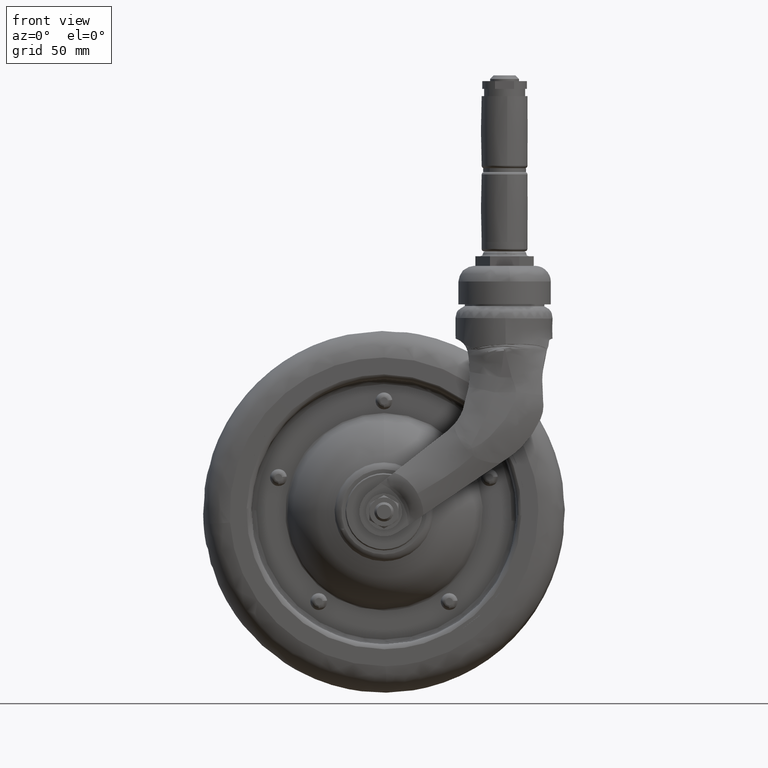
[diagram: clean part render]
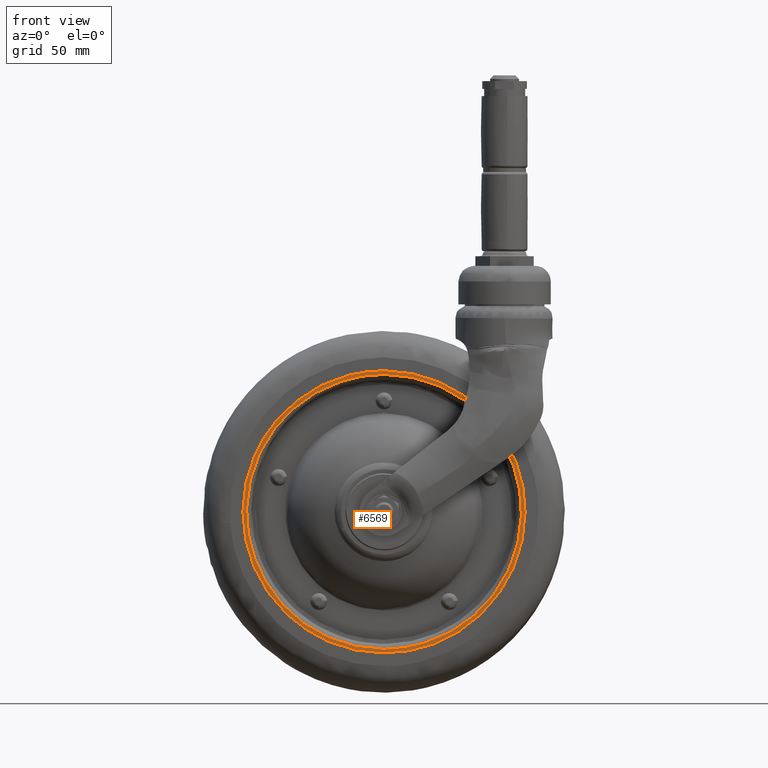
[diagram: same view with one face highlighted and labeled with its STEP entity id]
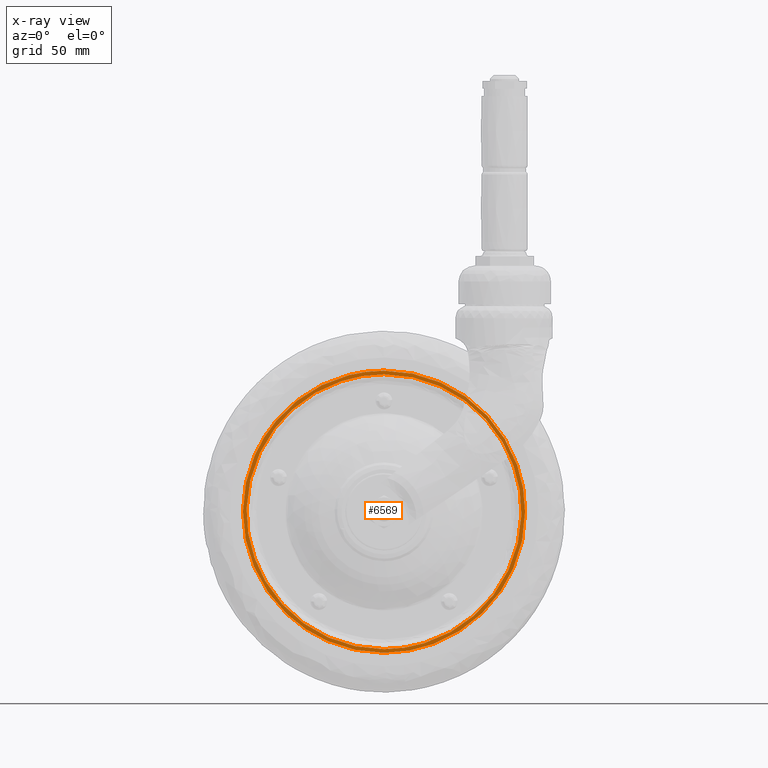
[diagram: x-ray of the same camera — body ghosted, the highlighted face saturated]
A machine part, front view. The second image highlights one B-rep face of the part: STEP entity #6569.
The next image is the same camera in x-ray: the body ghosted, the highlighted face saturated — about 0% of this face is hidden behind the body in this view.
In plain terms, the highlighted face is a freeform B-spline surface patch.
Its self-contained STEP definition (entity closure, byte-faithful):
#499=CARTESIAN_POINT('',(-44.668006276970871,-10.499999999524420,37.775910120290220));
#500=VERTEX_POINT('',#499);
#501=CARTESIAN_POINT('',(0.0,-10.500000000000000,58.500000000000000));
#502=VERTEX_POINT('',#501);
#503=CARTESIAN_POINT('',(-44.668006276970871,-10.499999999524420,37.775910120290220));
#504=CARTESIAN_POINT('',(-42.531499850204618,-10.499999999547160,40.302644938527017));
#505=CARTESIAN_POINT('',(-39.050892095798780,-10.499999999584221,43.772612621759201));
#506=CARTESIAN_POINT('',(-33.392825211512488,-10.499999999644480,48.149196610798818));
#507=CARTESIAN_POINT('',(-28.225740827464449,-10.499999999699471,51.388512244400417));
#508=CARTESIAN_POINT('',(-21.283815222057068,-10.499999999773371,54.695726441397802));
#509=CARTESIAN_POINT('',(-11.911811721550199,-10.499999999873360,57.651046919352332));
#510=CARTESIAN_POINT('',(-4.367826162574299,-10.499999999953291,58.500807994448962));
#511=CARTESIAN_POINT('',(0.0,-10.500000000000000,58.500000000000000));
#512=B_SPLINE_CURVE_WITH_KNOTS('',3,(#503,#504,#505,#506,#507,#508,#509,#510,#511),.UNSPECIFIED.,.F.,.U.,(4,1,1,1,1,1,4),(0.000000036848554,9.926753569037629,14.691608753712970,21.441794945354609,28.191945486303041,37.721672881896062,50.824993210712186),.UNSPECIFIED.);
#513=EDGE_CURVE('',#500,#502,#512,.T.);
#515=CARTESIAN_POINT('',(58.499999999999702,-10.500000000000000,-0.000005899866577));
#516=VERTEX_POINT('',#515);
#517=CARTESIAN_POINT('',(0.0,-10.500000000000000,58.500000000000000));
#518=CARTESIAN_POINT('',(3.709189951936700,-10.500000000000000,58.500440409058747));
#519=CARTESIAN_POINT('',(9.093271492762295,-10.500000000000011,57.986154498199632));
#520=CARTESIAN_POINT('',(16.434033792165970,-10.500000000000041,56.242679519439001));
#521=CARTESIAN_POINT('',(22.326449612643440,-10.499999999999799,54.215634285552433));
#522=CARTESIAN_POINT('',(29.025622529548439,-10.500000000000350,50.996795870498907));
#523=CARTESIAN_POINT('',(36.137253625028571,-10.499999999999700,46.307994913498533));
#524=CARTESIAN_POINT('',(42.347021859649722,-10.500000000000121,40.644903244538263));
#525=CARTESIAN_POINT('',(47.612904194284809,-10.500000000000050,34.268215987993692));
#526=CARTESIAN_POINT('',(51.508498116427667,-10.499999999999909,28.074562725900702));
#527=CARTESIAN_POINT('',(54.271843955250638,-10.500000000000011,22.089728067598600));
#528=CARTESIAN_POINT('',(56.236940817048691,-10.499999999999940,16.434107950125139));
#529=CARTESIAN_POINT('',(57.969619374904312,-10.499999999999989,9.332604232190024));
#530=CARTESIAN_POINT('',(58.500437776832811,-10.500000000000099,3.589543796453444));
#531=CARTESIAN_POINT('',(58.499999999999702,-10.500000000000000,-0.000005899866577));
#532=B_SPLINE_CURVE_WITH_KNOTS('',3,(#517,#518,#519,#520,#521,#522,#523,#524,#525,#526,#527,#528,#529,#530,#531),.UNSPECIFIED.,.F.,.U.,(4,1,1,1,1,1,1,1,1,1,1,1,4),(0.000000121534470,11.127462391086780,16.152813587663530,22.613980197012541,29.793027654757640,38.407940409186260,48.099488936223459,54.919608063207299,63.175564221991380,69.995660057768404,74.662034724667421,81.123176413496310,91.891732593995016),.UNSPECIFIED.);
#533=EDGE_CURVE('',#502,#516,#532,.T.);
#535=CARTESIAN_POINT('',(0.0,-10.500000000000000,-58.500000000000000));
#536=VERTEX_POINT('',#535);
#537=CARTESIAN_POINT('',(58.499999999999702,-10.500000000000000,-0.000005899866577));
#538=CARTESIAN_POINT('',(58.500084764206711,-10.500000000000000,-2.632311822587533));
#539=CARTESIAN_POINT('',(58.119847764633747,-10.500000000000011,-8.255868644845169));
#540=CARTESIAN_POINT('',(56.178712604524883,-10.499999999999989,-17.289917923353489));
#541=CARTESIAN_POINT('',(52.653968142237652,-10.500000000000020,-26.103773671653428));
#542=CARTESIAN_POINT('',(48.354262361085382,-10.499999999999989,-33.177876803106059));
#543=CARTESIAN_POINT('',(43.989423408977267,-10.500000000000020,-38.735627048655303));
#544=CARTESIAN_POINT('',(39.636095576484827,-10.499999999999970,-43.197155663986422));
#545=CARTESIAN_POINT('',(34.065124359058480,-10.500000000000030,-47.740629133652348));
#546=CARTESIAN_POINT('',(27.160824083776710,-10.499999999999989,-52.083415016749981));
#547=CARTESIAN_POINT('',(19.765413686844781,-10.500000000000020,-55.253484263874427));
#548=CARTESIAN_POINT('',(10.528894042536081,-10.499999999999851,-57.809488892077830));
#549=CARTESIAN_POINT('',(4.307507817982099,-10.500000000000160,-58.500879205823757));
#550=CARTESIAN_POINT('',(0.0,-10.500000000000000,-58.500000000000000));
#551=B_SPLINE_CURVE_WITH_KNOTS('',3,(#537,#538,#539,#540,#541,#542,#543,#544,#545,#546,#547,#548,#549,#550),.UNSPECIFIED.,.F.,.U.,(4,1,1,1,1,1,1,1,1,1,1,4),(0.000000122000088,7.896928312509402,16.870745130952930,27.639328662955808,36.254168690902340,41.638459242990287,48.817458242378613,54.919604087452782,63.175559648489383,73.226227403337987,78.969494726855075,91.891725943459846),.UNSPECIFIED.);
#552=EDGE_CURVE('',#516,#536,#551,.T.);
#554=CARTESIAN_POINT('',(-40.268741679730539,-10.500000000042361,-42.434399621021839));
#555=VERTEX_POINT('',#554);
#556=CARTESIAN_POINT('',(0.0,-10.500000000000000,-58.500000000000000));
#557=CARTESIAN_POINT('',(-3.701219272185127,-10.500000000003901,-58.500384897467157));
#558=CARTESIAN_POINT('',(-9.599821256720215,-10.500000000010109,-57.938274008060951));
#559=CARTESIAN_POINT('',(-18.475823785691510,-10.500000000019460,-55.708156692914343));
#560=CARTESIAN_POINT('',(-25.896210908357691,-10.500000000027200,-52.696680795736746));
#561=CARTESIAN_POINT('',(-33.579347346632908,-10.500000000035440,-48.155227541747159));
#562=CARTESIAN_POINT('',(-38.003627847132769,-10.500000000039901,-44.584209507551819));
#563=CARTESIAN_POINT('',(-40.268741679730539,-10.500000000042361,-42.434399621021839));
#564=B_SPLINE_CURVE_WITH_KNOTS('',3,(#556,#557,#558,#559,#560,#561,#562,#563),.UNSPECIFIED.,.F.,.U.,(4,1,1,1,1,4),(0.000000030826961,11.103582700159681,17.696351014858660,27.411943839360180,35.045683040785661,44.414330708108352),.UNSPECIFIED.);
#565=EDGE_CURVE('',#536,#555,#564,.T.);
#663=CARTESIAN_POINT('',(-58.499999999999709,-10.500000000000000,0.000005899865128));
#664=VERTEX_POINT('',#663);
#665=CARTESIAN_POINT('',(-58.499999999999709,-10.500000000000000,0.000005899865128));
#666=CARTESIAN_POINT('',(-58.500798190189833,-10.499999999947580,4.170923135576746));
#667=CARTESIAN_POINT('',(-57.822124423279391,-10.499999999867960,10.480299310871111));
#668=CARTESIAN_POINT('',(-55.404882996010599,-10.499999999757650,19.257528989556299));
#669=CARTESIAN_POINT('',(-52.765201421557499,-10.499999999677801,25.591318324447140));
#670=CARTESIAN_POINT('',(-49.122819839586782,-10.499999999596859,32.019236260279577));
#671=CARTESIAN_POINT('',(-46.394554840501527,-10.499999999550161,35.734523837260099));
#672=CARTESIAN_POINT('',(-44.668006276970871,-10.499999999524420,37.775910120290220));
#673=B_SPLINE_CURVE_WITH_KNOTS('',3,(#665,#666,#667,#668,#669,#670,#671,#672),.UNSPECIFIED.,.F.,.U.,(4,1,1,1,1,4),(0.000000027526852,12.512522226094640,18.929225234396750,27.270863338136639,33.045890300845102,41.066736177024673),.UNSPECIFIED.);
#674=EDGE_CURVE('',#664,#500,#673,.T.);
#703=CARTESIAN_POINT('',(-40.268741679730539,-10.500000000042361,-42.434399621021839));
#704=CARTESIAN_POINT('',(-43.318588886894467,-10.500000000039460,-39.541265145684527));
#705=CARTESIAN_POINT('',(-47.985064023378982,-10.500000000033991,-34.041459911948927));
#706=CARTESIAN_POINT('',(-52.543504170936252,-10.500000000026050,-26.078090872398789));
#707=CARTESIAN_POINT('',(-55.578537517291537,-10.500000000018719,-18.759339452783159));
#708=CARTESIAN_POINT('',(-57.862894460396809,-10.500000000010390,-10.385566446363301));
#709=CARTESIAN_POINT('',(-58.500398931749629,-10.500000000003700,-3.709174962130515));
#710=CARTESIAN_POINT('',(-58.499999999999709,-10.500000000000000,0.000005899865128));
#711=B_SPLINE_CURVE_WITH_KNOTS('',3,(#703,#704,#705,#706,#707,#708,#709,#710),.UNSPECIFIED.,.F.,.U.,(4,1,1,1,1,4),(0.000000034122522,12.611188763852820,21.513241504306141,27.447837671352030,36.349890638856358,47.477403784129478),.UNSPECIFIED.);
#712=EDGE_CURVE('',#555,#664,#711,.T.);
#1659=CARTESIAN_POINT('',(56.981998774835702,-10.500000000000000,-1.432415440422207));
#1660=VERTEX_POINT('',#1659);
#1671=CARTESIAN_POINT('',(0.0,-10.500000000000000,57.0));
#1672=VERTEX_POINT('',#1671);
#1673=CARTESIAN_POINT('',(0.0,-10.500000000000000,57.0));
#1674=CARTESIAN_POINT('',(2.961196077835982,-10.500000000000020,57.000191291936353));
#1675=CARTESIAN_POINT('',(8.765086376460232,-10.500000000000020,56.546720552069267));
#1676=CARTESIAN_POINT('',(16.050011726280310,-10.499999999999909,54.835963994793403));
#1677=CARTESIAN_POINT('',(22.288893217261311,-10.500000000000201,52.564739257170160));
#1678=CARTESIAN_POINT('',(27.846852624254620,-10.499999999999909,49.887867565060752));
#1679=CARTESIAN_POINT('',(34.052352555667760,-10.499999999999950,45.933987124694717));
#1680=CARTESIAN_POINT('',(40.025752314320492,-10.499999999999931,40.857051399161328));
#1681=CARTESIAN_POINT('',(45.917147402604940,-10.500000000000080,34.180045841929697));
#1682=CARTESIAN_POINT('',(50.367519559621122,-10.499999999999860,27.144207221902850));
#1683=CARTESIAN_POINT('',(53.806929291287467,-10.500000000000220,19.323846695663899));
#1684=CARTESIAN_POINT('',(56.436337564240077,-10.499999999999350,10.192493193561070));
#1685=CARTESIAN_POINT('',(57.093107617282513,-10.500000000000870,2.948832266493084));
#1686=CARTESIAN_POINT('',(56.981998774835702,-10.500000000000000,-1.432415440422207));
#1687=B_SPLINE_CURVE_WITH_KNOTS('',3,(#1673,#1674,#1675,#1676,#1677,#1678,#1679,#1680,#1681,#1682,#1683,#1684,#1685,#1686),.UNSPECIFIED.,.F.,.U.,(4,1,1,1,1,1,1,1,1,1,1,4),(0.000000128207617,8.883573419948831,17.411839131758711,22.386680741942470,28.782905260869651,35.889775909165593,44.418090023901136,52.235583039453203,62.540569171072264,69.292115083889428,77.820386645895852,90.968104179318132),.UNSPECIFIED.);
#1688=EDGE_CURVE('',#1672,#1660,#1687,.T.);
#1690=CARTESIAN_POINT('',(-56.981998774835702,-10.500000000000000,1.432415440422193));
#1691=VERTEX_POINT('',#1690);
#1692=CARTESIAN_POINT('',(-56.981998774835702,-10.500000000000000,1.432415440422193));
#1693=CARTESIAN_POINT('',(-56.932997222887167,-10.500000000000011,3.381985234505835));
#1694=CARTESIAN_POINT('',(-56.564618377606742,-10.500000000000000,8.192376583077458));
#1695=CARTESIAN_POINT('',(-55.124868578109542,-10.499999999999980,15.178277708393370));
#1696=CARTESIAN_POINT('',(-52.219678876491479,-10.500000000000000,23.415443941231739));
#1697=CARTESIAN_POINT('',(-47.856879120566127,-10.500000000000030,31.535255664949162));
#1698=CARTESIAN_POINT('',(-42.465076031401779,-10.499999999999970,38.282293960026053));
#1699=CARTESIAN_POINT('',(-37.405700035097759,-10.500000000000030,43.127063913159610));
#1700=CARTESIAN_POINT('',(-32.713426598298568,-10.499999999999920,46.823089300620460));
#1701=CARTESIAN_POINT('',(-26.659323336615788,-10.500000000000281,50.580786081104023));
#1702=CARTESIAN_POINT('',(-19.514995532888339,-10.499999999999851,53.768023623692322));
#1703=CARTESIAN_POINT('',(-10.439051583627830,-10.500000000000290,56.326115428321437));
#1704=CARTESIAN_POINT('',(-3.900424127531544,-10.499999999999609,57.000532291896093));
#1705=CARTESIAN_POINT('',(0.0,-10.500000000000000,57.0));
#1706=B_SPLINE_CURVE_WITH_KNOTS('',3,(#1692,#1693,#1694,#1695,#1696,#1697,#1698,#1699,#1700,#1701,#1702,#1703,#1704,#1705),.UNSPECIFIED.,.F.,.U.,(4,1,1,1,1,1,1,1,1,1,1,4),(0.000000123593523,5.850574773598979,14.454356545979410,21.337432582005349,32.006170743295542,41.986644356223280,47.148763712387783,52.999374727381159,59.882449890252673,68.486289282601319,76.401803633218265,88.102958190404479),.UNSPECIFIED.);
#1707=EDGE_CURVE('',#1691,#1672,#1706,.T.);
#1751=CARTESIAN_POINT('',(0.0,-10.500000000000000,-57.0));
#1752=VERTEX_POINT('',#1751);
#1753=CARTESIAN_POINT('',(0.0,-10.500000000000000,-57.0));
#1754=CARTESIAN_POINT('',(-2.013584232060014,-10.499999999999989,-56.999995444468460));
#1755=CARTESIAN_POINT('',(-7.225325979890914,-10.500000000000030,-56.723767567041577));
#1756=CARTESIAN_POINT('',(-14.228827168406250,-10.499999999999950,-55.375887607630837));
#1757=CARTESIAN_POINT('',(-21.311154723041280,-10.500000000000121,-52.995766475756767));
#1758=CARTESIAN_POINT('',(-27.872135840373300,-10.499999999999851,-49.936045169926430));
#1759=CARTESIAN_POINT('',(-35.441676606384704,-10.500000000000160,-45.013324701023564));
#1760=CARTESIAN_POINT('',(-42.225522652208276,-10.499999999999909,-38.677984280617601));
#1761=CARTESIAN_POINT('',(-47.789834420803182,-10.500000000000130,-31.424382079128499));
#1762=CARTESIAN_POINT('',(-51.217026737165178,-10.499999999999821,-25.311586783705710));
#1763=CARTESIAN_POINT('',(-53.912760517930991,-10.500000000000220,-18.857762438767299));
#1764=CARTESIAN_POINT('',(-55.557191585329591,-10.499999999999901,-13.277403930288539));
#1765=CARTESIAN_POINT('',(-56.811784871807632,-10.500000000000011,-6.154831849778439));
#1766=CARTESIAN_POINT('',(-57.056603155669762,-10.500000000000011,-1.527833190888095));
#1767=CARTESIAN_POINT('',(-56.981998774835702,-10.500000000000000,1.432415440422193));
#1768=B_SPLINE_CURVE_WITH_KNOTS('',3,(#1753,#1754,#1755,#1756,#1757,#1758,#1759,#1760,#1761,#1762,#1763,#1764,#1765,#1766,#1767),.UNSPECIFIED.,.F.,.U.,(4,1,1,1,1,1,1,1,1,1,1,1,4),(0.000000128187153,6.040779787161213,15.635131733777300,21.320643482884961,28.427547212602502,37.311140574235139,48.326785003087970,56.144368908800388,64.672621749170034,69.292115083889428,77.109724032749028,82.084562300048844,90.968104179318061),.UNSPECIFIED.);
#1769=EDGE_CURVE('',#1752,#1691,#1768,.T.);
#1771=CARTESIAN_POINT('',(56.981998774835702,-10.500000000000000,-1.432415440422207));
#1772=CARTESIAN_POINT('',(56.870532064279402,-10.500000000000030,-5.905059158104428));
#1773=CARTESIAN_POINT('',(55.767026280525350,-10.499999999999980,-13.565380051252941));
#1774=CARTESIAN_POINT('',(52.455894529467741,-10.500000000000011,-22.774035691486219));
#1775=CARTESIAN_POINT('',(48.660199678041472,-10.500000000000000,-29.994108552203400));
#1776=CARTESIAN_POINT('',(44.021867873282879,-10.499999999999989,-36.577256805396750));
#1777=CARTESIAN_POINT('',(38.649090080367969,-10.499999999999980,-42.109158746503702));
#1778=CARTESIAN_POINT('',(32.903045838302958,-10.499999999999959,-46.691425619437432));
#1779=CARTESIAN_POINT('',(26.869452357675591,-10.500000000000041,-50.487074564440533));
#1780=CARTESIAN_POINT('',(19.725102246334469,-10.499999999999970,-53.674233960180430));
#1781=CARTESIAN_POINT('',(10.668404672431860,-10.500000000000179,-56.286125356159381));
#1782=CARTESIAN_POINT('',(4.129872937227716,-10.499999999999741,-57.000681538679892));
#1783=CARTESIAN_POINT('',(0.0,-10.500000000000000,-57.0));
#1784=B_SPLINE_CURVE_WITH_KNOTS('',3,(#1771,#1772,#1773,#1774,#1775,#1776,#1777,#1778,#1779,#1780,#1781,#1782,#1783),.UNSPECIFIED.,.F.,.U.,(4,1,1,1,1,1,1,1,1,1,4),(0.000000123588762,13.421897326635030,23.058197737807902,29.252969909653320,37.856767251188863,47.148763712385453,52.311110220876039,59.882449890250797,68.486289282601007,75.713525298819050,88.102958190404493),.UNSPECIFIED.);
#1785=EDGE_CURVE('',#1660,#1752,#1784,.T.);
#6550=CARTESIAN_POINT('',(-64.344149773230981,-10.500000000000000,64.344149773231308));
#6551=CARTESIAN_POINT('',(-64.344149773230981,-10.500000000000000,-64.344152911415847));
#6552=CARTESIAN_POINT('',(64.344152911415506,-10.500000000000000,64.344149773231308));
#6553=CARTESIAN_POINT('',(64.344152911415506,-10.500000000000000,-64.344152911415847));
#6554=B_SPLINE_SURFACE_WITH_KNOTS('',1,1,((#6550,#6552),(#6551,#6553)),.UNSPECIFIED.,.F.,.F.,.U.,(2,2),(2,2),(0.0,128.688302684647200),(0.0,128.688302684646490),.UNSPECIFIED.);
#6555=ORIENTED_EDGE('',*,*,#565,.F.);
#6556=ORIENTED_EDGE('',*,*,#552,.F.);
#6557=ORIENTED_EDGE('',*,*,#533,.F.);
#6558=ORIENTED_EDGE('',*,*,#513,.F.);
#6559=ORIENTED_EDGE('',*,*,#674,.F.);
#6560=ORIENTED_EDGE('',*,*,#712,.F.);
#6561=EDGE_LOOP('',(#6555,#6556,#6557,#6558,#6559,#6560));
#6562=FACE_OUTER_BOUND('',#6561,.T.);
#6563=ORIENTED_EDGE('',*,*,#1769,.T.);
#6564=ORIENTED_EDGE('',*,*,#1707,.T.);
#6565=ORIENTED_EDGE('',*,*,#1688,.T.);
#6566=ORIENTED_EDGE('',*,*,#1785,.T.);
#6567=EDGE_LOOP('',(#6563,#6564,#6565,#6566));
#6568=FACE_BOUND('',#6567,.T.);
#6569=ADVANCED_FACE('',(#6562,#6568),#6554,.T.);